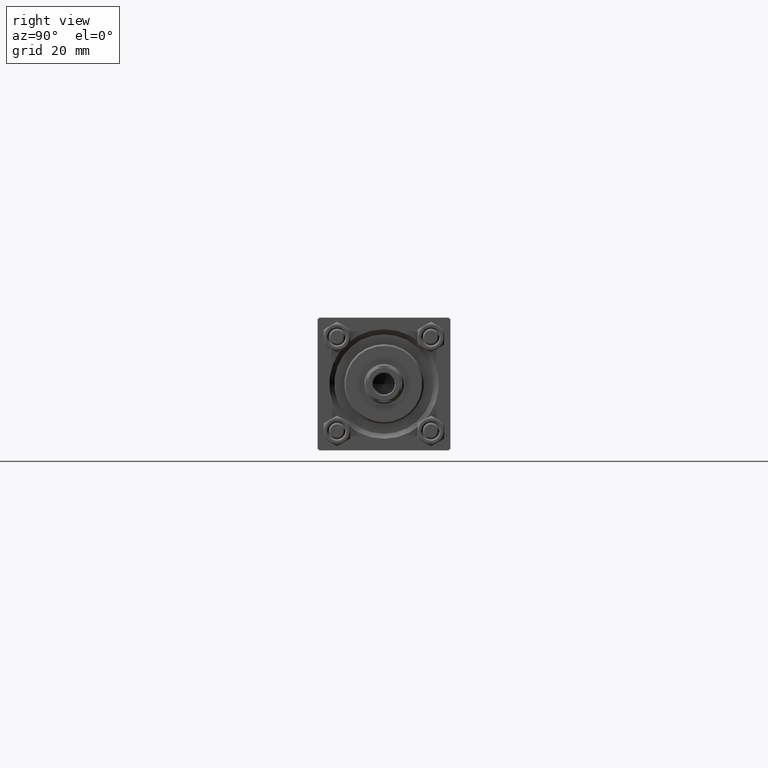
[diagram: clean part render]
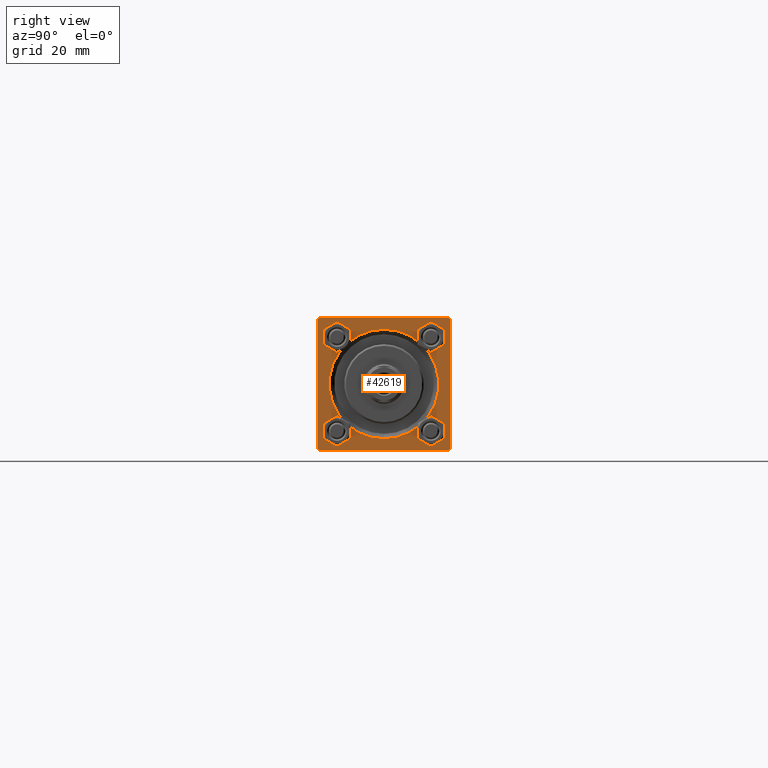
[diagram: same view with one face highlighted and labeled with its STEP entity id]
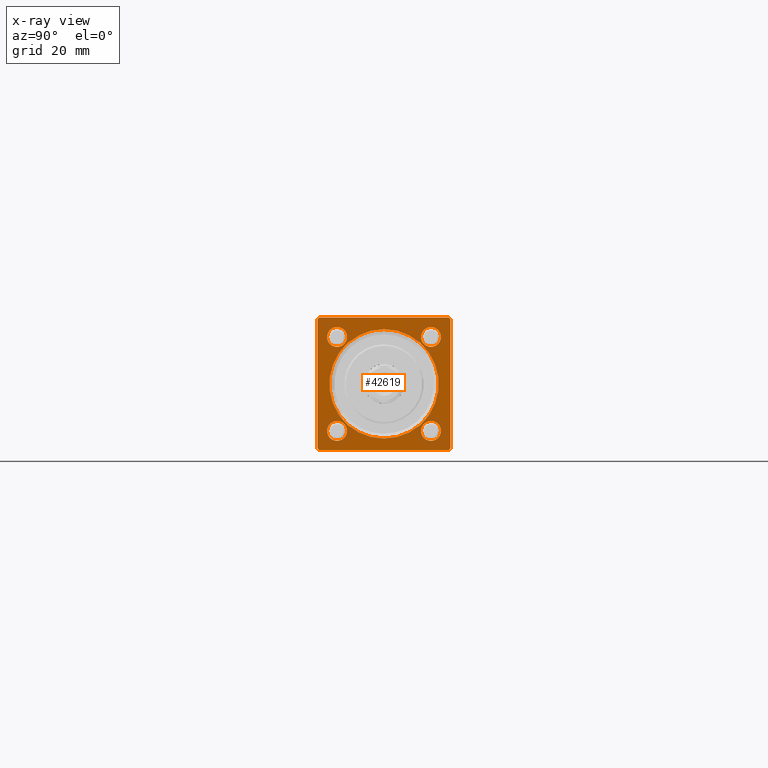
[diagram: x-ray of the same camera — body ghosted, the highlighted face saturated]
A machine part, right view. The second image highlights one B-rep face of the part: STEP entity #42619.
The next image is the same camera in x-ray: the body ghosted, the highlighted face saturated — about 0% of this face is hidden behind the body in this view.
In plain terms, the highlighted planar face has unit normal (-1, 0, 0).
Its self-contained STEP definition (entity closure, byte-faithful):
#65 = LINE ( 'NONE', #10880, #676 ) ;
#303 = EDGE_CURVE ( 'NONE', #40761, #41611, #10837, .T. ) ;
#379 = VECTOR ( 'NONE', #19464, 1000.000000000000000 ) ;
#676 = VECTOR ( 'NONE', #41577, 1000.000000000000000 ) ;
#960 = LINE ( 'NONE', #42475, #36197 ) ;
#1293 = ORIENTED_EDGE ( 'NONE', *, *, #8241, .T. ) ;
#1320 = EDGE_CURVE ( 'NONE', #47875, #2903, #47844, .T. ) ;
#1404 = VERTEX_POINT ( 'NONE', #48044 ) ;
#1768 = ORIENTED_EDGE ( 'NONE', *, *, #30400, .T. ) ;
#1890 = VECTOR ( 'NONE', #25726, 1000.000000000000000 ) ;
#2099 = ORIENTED_EDGE ( 'NONE', *, *, #47697, .T. ) ;
#2309 = CARTESIAN_POINT ( 'NONE',  ( 179.0000000000000000, -20.00000000000000355, 19.99999999999999645 ) ) ;
#2518 = CARTESIAN_POINT ( 'NONE',  ( 179.0000000000000000, 14.15000000000000036, 14.15000000000000036 ) ) ;
#2765 = DIRECTION ( 'NONE',  ( -1.000000000000000000, -0.000000000000000000, -0.000000000000000000 ) ) ;
#2903 = VERTEX_POINT ( 'NONE', #9374 ) ;
#3038 = ORIENTED_EDGE ( 'NONE', *, *, #48677, .T. ) ;
#3092 = CARTESIAN_POINT ( 'NONE',  ( 179.0000000000000000, 19.99999999999999645, 20.00000000000000000 ) ) ;
#4147 = VERTEX_POINT ( 'NONE', #26668 ) ;
#4391 = EDGE_CURVE ( 'NONE', #49770, #11071, #26112, .T. ) ;
#4613 = CARTESIAN_POINT ( 'NONE',  ( 179.0000000000000000, 14.15000000000000036, -11.15000000000002522 ) ) ;
#4697 = EDGE_LOOP ( 'NONE', ( #26913, #18633 ) ) ;
#5850 = FACE_OUTER_BOUND ( 'NONE', #32778, .T. ) ;
#5941 = LINE ( 'NONE', #29089, #20116 ) ;
#6669 = DIRECTION ( 'NONE',  ( -1.000000000000000000, -0.000000000000000000, -0.000000000000000000 ) ) ;
#7572 = ORIENTED_EDGE ( 'NONE', *, *, #32546, .T. ) ;
#7602 = EDGE_LOOP ( 'NONE', ( #42468, #26529 ) ) ;
#7788 = EDGE_CURVE ( 'NONE', #49770, #17042, #42924, .T. ) ;
#8183 = DIRECTION ( 'NONE',  ( -0.000000000000000000, 0.7071067811865474617, 0.7071067811865474617 ) ) ;
#8241 = EDGE_CURVE ( 'NONE', #23576, #26657, #36764, .T. ) ;
#8779 = CARTESIAN_POINT ( 'NONE',  ( 179.0000000000000000, 14.15000000000000036, -14.15000000000000036 ) ) ;
#8870 = DIRECTION ( 'NONE',  ( -1.000000000000000000, -0.000000000000000000, -0.000000000000000000 ) ) ;
#8890 = DIRECTION ( 'NONE',  ( -1.000000000000000000, 0.000000000000000000, -0.000000000000000000 ) ) ;
#9374 = CARTESIAN_POINT ( 'NONE',  ( 179.0000000000000000, 14.15000000000000036, -17.14999999999997726 ) ) ;
#9743 = VERTEX_POINT ( 'NONE', #11780 ) ;
#9871 = FACE_BOUND ( 'NONE', #30403, .T. ) ;
#10373 = LINE ( 'NONE', #3092, #1890 ) ;
#10379 = CARTESIAN_POINT ( 'NONE',  ( 179.0000000000000000, -20.00000000000000355, 19.50000000000002487 ) ) ;
#10803 = EDGE_CURVE ( 'NONE', #2903, #47875, #27253, .T. ) ;
#10837 = CIRCLE ( 'NONE', #43020, 2.999999999999973355 ) ;
#10880 = CARTESIAN_POINT ( 'NONE',  ( 179.0000000000000000, 19.99999999999999645, 20.00000000000000000 ) ) ;
#11071 = VERTEX_POINT ( 'NONE', #35322 ) ;
#11375 = DIRECTION ( 'NONE',  ( -1.000000000000000000, -0.000000000000000000, -0.000000000000000000 ) ) ;
#11780 = CARTESIAN_POINT ( 'NONE',  ( 179.0000000000000000, -14.15000000000000036, -17.14999999999997726 ) ) ;
#12035 = ORIENTED_EDGE ( 'NONE', *, *, #27922, .T. ) ;
#12257 = ORIENTED_EDGE ( 'NONE', *, *, #33449, .T. ) ;
#12384 = DIRECTION ( 'NONE',  ( 0.000000000000000000, 0.000000000000000000, 1.000000000000000000 ) ) ;
#12581 = ORIENTED_EDGE ( 'NONE', *, *, #23697, .F. ) ;
#12619 = ORIENTED_EDGE ( 'NONE', *, *, #1320, .T. ) ;
#12751 = DIRECTION ( 'NONE',  ( 0.000000000000000000, 0.7071067811865474617, -0.7071067811865474617 ) ) ;
#13176 = EDGE_CURVE ( 'NONE', #1404, #34651, #25701, .T. ) ;
#13246 = CIRCLE ( 'NONE', #41392, 16.49999999999998579 ) ;
#13392 = FACE_BOUND ( 'NONE', #14469, .T. ) ;
#13445 = DIRECTION ( 'NONE',  ( -1.000000000000000000, -0.000000000000000000, -0.000000000000000000 ) ) ;
#14057 = CARTESIAN_POINT ( 'NONE',  ( 179.0000000000000000, 0.000000000000000000, -16.49999999999998579 ) ) ;
#14469 = EDGE_LOOP ( 'NONE', ( #15778, #12619 ) ) ;
#14742 = CARTESIAN_POINT ( 'NONE',  ( 179.0000000000000000, 19.99999999999999645, -19.50000000000000000 ) ) ;
#14923 = CARTESIAN_POINT ( 'NONE',  ( 179.0000000000000000, -14.15000000000000036, 17.15000000000000568 ) ) ;
#15778 = ORIENTED_EDGE ( 'NONE', *, *, #10803, .T. ) ;
#17042 = VERTEX_POINT ( 'NONE', #14742 ) ;
#17192 = CARTESIAN_POINT ( 'NONE',  ( 179.0000000000000000, -14.15000000000000036, 14.15000000000000036 ) ) ;
#17605 = AXIS2_PLACEMENT_3D ( 'NONE', #41734, #33927, #38694 ) ;
#17892 = ORIENTED_EDGE ( 'NONE', *, *, #4391, .F. ) ;
#18633 = ORIENTED_EDGE ( 'NONE', *, *, #30919, .T. ) ;
#18936 = DIRECTION ( 'NONE',  ( 0.000000000000000000, 0.000000000000000000, 1.000000000000000000 ) ) ;
#19054 = DIRECTION ( 'NONE',  ( 0.000000000000000000, -1.000000000000000000, 0.000000000000000000 ) ) ;
#19464 = DIRECTION ( 'NONE',  ( -0.000000000000000000, -0.7071067811865279218, -0.7071067811865671127 ) ) ;
#19692 = CARTESIAN_POINT ( 'NONE',  ( 179.0000000000000000, 19.50000000000002487, 20.00000000000000000 ) ) ;
#20116 = VECTOR ( 'NONE', #28117, 1000.000000000000114 ) ;
#20271 = VERTEX_POINT ( 'NONE', #42366 ) ;
#20694 = DIRECTION ( 'NONE',  ( 0.000000000000000000, 8.673617379884036705E-17, -1.000000000000000000 ) ) ;
#20855 = AXIS2_PLACEMENT_3D ( 'NONE', #46893, #8870, #12384 ) ;
#20980 = DIRECTION ( 'NONE',  ( -1.000000000000000000, -0.000000000000000000, -0.000000000000000000 ) ) ;
#21318 = VERTEX_POINT ( 'NONE', #19692 ) ;
#21438 = FACE_BOUND ( 'NONE', #39091, .T. ) ;
#21525 = EDGE_CURVE ( 'NONE', #41611, #40761, #47579, .T. ) ;
#21750 = DIRECTION ( 'NONE',  ( 0.000000000000000000, 0.000000000000000000, 1.000000000000000000 ) ) ;
#21765 = CARTESIAN_POINT ( 'NONE',  ( 179.0000000000000000, 14.15000000000000036, -14.15000000000000036 ) ) ;
#23483 = CARTESIAN_POINT ( 'NONE',  ( 179.0000000000000000, -14.15000000000000036, 14.15000000000000036 ) ) ;
#23552 = ORIENTED_EDGE ( 'NONE', *, *, #44164, .T. ) ;
#23576 = VERTEX_POINT ( 'NONE', #10379 ) ;
#23697 = EDGE_CURVE ( 'NONE', #20271, #17042, #65, .T. ) ;
#23984 = CARTESIAN_POINT ( 'NONE',  ( 179.0000000000000000, -14.15000000000000036, -11.15000000000002522 ) ) ;
#24127 = DIRECTION ( 'NONE',  ( -1.000000000000000000, -0.000000000000000000, -0.000000000000000000 ) ) ;
#25287 = DIRECTION ( 'NONE',  ( 0.000000000000000000, 0.000000000000000000, 1.000000000000000000 ) ) ;
#25701 = CIRCLE ( 'NONE', #46637, 3.000000000000004441 ) ;
#25726 = DIRECTION ( 'NONE',  ( 0.000000000000000000, -1.000000000000000000, -8.673617379884035472E-17 ) ) ;
#26024 = AXIS2_PLACEMENT_3D ( 'NONE', #36308, #8890, #47418 ) ;
#26112 = LINE ( 'NONE', #49042, #34264 ) ;
#26120 = AXIS2_PLACEMENT_3D ( 'NONE', #8779, #24127, #27153 ) ;
#26529 = ORIENTED_EDGE ( 'NONE', *, *, #21525, .T. ) ;
#26657 = VERTEX_POINT ( 'NONE', #29815 ) ;
#26668 = CARTESIAN_POINT ( 'NONE',  ( 179.0000000000000000, 2.020667218593131128E-15, 16.49999999999998579 ) ) ;
#26875 = AXIS2_PLACEMENT_3D ( 'NONE', #32886, #48284, #44239 ) ;
#26913 = ORIENTED_EDGE ( 'NONE', *, *, #49371, .T. ) ;
#27153 = DIRECTION ( 'NONE',  ( 0.000000000000000000, 0.000000000000000000, 1.000000000000000000 ) ) ;
#27253 = CIRCLE ( 'NONE', #35294, 2.999999999999976463 ) ;
#27922 = EDGE_CURVE ( 'NONE', #34651, #1404, #36125, .T. ) ;
#28117 = DIRECTION ( 'NONE',  ( 0.000000000000000000, -0.7071067811865474617, 0.7071067811865474617 ) ) ;
#29089 = CARTESIAN_POINT ( 'NONE',  ( 179.0000000000000000, 19.50000000000002487, 20.00000000000000000 ) ) ;
#29133 = CARTESIAN_POINT ( 'NONE',  ( 179.0000000000000000, 19.49999999999999645, -20.00000000000000000 ) ) ;
#29815 = CARTESIAN_POINT ( 'NONE',  ( 179.0000000000000000, -20.00000000000000000, -19.50000000000002487 ) ) ;
#30400 = EDGE_CURVE ( 'NONE', #42489, #9743, #46599, .T. ) ;
#30403 = EDGE_LOOP ( 'NONE', ( #3038, #1768 ) ) ;
#30546 = LINE ( 'NONE', #38085, #379 ) ;
#30919 = EDGE_CURVE ( 'NONE', #4147, #31623, #39311, .T. ) ;
#31623 = VERTEX_POINT ( 'NONE', #14057 ) ;
#31955 = VECTOR ( 'NONE', #8183, 1000.000000000000114 ) ;
#32027 = FACE_BOUND ( 'NONE', #4697, .T. ) ;
#32546 = EDGE_CURVE ( 'NONE', #20271, #21318, #5941, .T. ) ;
#32778 = EDGE_LOOP ( 'NONE', ( #1293, #12257, #17892, #46791, #12581, #7572, #23552, #2099 ) ) ;
#32886 = CARTESIAN_POINT ( 'NONE',  ( 179.0000000000000000, -14.15000000000000036, -14.15000000000000036 ) ) ;
#33449 = EDGE_CURVE ( 'NONE', #26657, #11071, #960, .T. ) ;
#33910 = CARTESIAN_POINT ( 'NONE',  ( 179.0000000000000000, 14.15000000000000036, 11.15000000000002700 ) ) ;
#33927 = DIRECTION ( 'NONE',  ( -1.000000000000000000, -0.000000000000000000, -0.000000000000000000 ) ) ;
#34264 = VECTOR ( 'NONE', #19054, 1000.000000000000000 ) ;
#34651 = VERTEX_POINT ( 'NONE', #14923 ) ;
#35294 = AXIS2_PLACEMENT_3D ( 'NONE', #21765, #6669, #25287 ) ;
#35322 = CARTESIAN_POINT ( 'NONE',  ( 179.0000000000000000, -19.50000000000002487, -20.00000000000000000 ) ) ;
#35357 = CARTESIAN_POINT ( 'NONE',  ( 179.0000000000000000, 19.99999999999999645, -19.50000000000000000 ) ) ;
#35518 = AXIS2_PLACEMENT_3D ( 'NONE', #44168, #13445, #21750 ) ;
#35557 = DIRECTION ( 'NONE',  ( 0.000000000000000000, 0.000000000000000000, 1.000000000000000000 ) ) ;
#35591 = VERTEX_POINT ( 'NONE', #42280 ) ;
#36125 = CIRCLE ( 'NONE', #40142, 3.000000000000004441 ) ;
#36197 = VECTOR ( 'NONE', #12751, 1000.000000000000114 ) ;
#36308 = CARTESIAN_POINT ( 'NONE',  ( 179.0000000000000000, 0.000000000000000000, 0.000000000000000000 ) ) ;
#36754 = VECTOR ( 'NONE', #20694, 1000.000000000000000 ) ;
#36764 = LINE ( 'NONE', #2309, #36754 ) ;
#36801 = DIRECTION ( 'NONE',  ( 0.000000000000000000, 0.000000000000000000, 1.000000000000000000 ) ) ;
#37389 = CARTESIAN_POINT ( 'NONE',  ( 179.0000000000000000, 14.15000000000000036, 17.14999999999997726 ) ) ;
#37801 = CARTESIAN_POINT ( 'NONE',  ( 179.0000000000000000, 0.000000000000000000, 0.000000000000000000 ) ) ;
#38085 = CARTESIAN_POINT ( 'NONE',  ( 179.0000000000000000, -20.00000000000000355, 19.50000000000002487 ) ) ;
#38694 = DIRECTION ( 'NONE',  ( 0.000000000000000000, 0.000000000000000000, 1.000000000000000000 ) ) ;
#38698 = ORIENTED_EDGE ( 'NONE', *, *, #13176, .T. ) ;
#39091 = EDGE_LOOP ( 'NONE', ( #38698, #12035 ) ) ;
#39311 = CIRCLE ( 'NONE', #17605, 16.49999999999998579 ) ;
#40142 = AXIS2_PLACEMENT_3D ( 'NONE', #23483, #43125, #35557 ) ;
#40322 = FACE_BOUND ( 'NONE', #7602, .T. ) ;
#40761 = VERTEX_POINT ( 'NONE', #33910 ) ;
#41392 = AXIS2_PLACEMENT_3D ( 'NONE', #37801, #11375, #18936 ) ;
#41577 = DIRECTION ( 'NONE',  ( 0.000000000000000000, 0.000000000000000000, -1.000000000000000000 ) ) ;
#41611 = VERTEX_POINT ( 'NONE', #37389 ) ;
#41734 = CARTESIAN_POINT ( 'NONE',  ( 179.0000000000000000, 0.000000000000000000, 0.000000000000000000 ) ) ;
#42280 = CARTESIAN_POINT ( 'NONE',  ( 179.0000000000000000, -19.50000000000006040, 19.99999999999999645 ) ) ;
#42366 = CARTESIAN_POINT ( 'NONE',  ( 179.0000000000000000, 19.99999999999999645, 19.50000000000002842 ) ) ;
#42468 = ORIENTED_EDGE ( 'NONE', *, *, #303, .T. ) ;
#42475 = CARTESIAN_POINT ( 'NONE',  ( 179.0000000000000000, -19.50000000000002487, -20.00000000000000000 ) ) ;
#42489 = VERTEX_POINT ( 'NONE', #23984 ) ;
#42619 = ADVANCED_FACE ( 'NONE', ( #9871, #13392, #40322, #21438, #32027, #5850 ), #43385, .F. ) ;
#42924 = LINE ( 'NONE', #35357, #31955 ) ;
#43020 = AXIS2_PLACEMENT_3D ( 'NONE', #2518, #2765, #45288 ) ;
#43125 = DIRECTION ( 'NONE',  ( -1.000000000000000000, -0.000000000000000000, -0.000000000000000000 ) ) ;
#43385 = PLANE ( 'NONE',  #26024 ) ;
#44164 = EDGE_CURVE ( 'NONE', #21318, #35591, #10373, .T. ) ;
#44168 = CARTESIAN_POINT ( 'NONE',  ( 179.0000000000000000, 14.15000000000000036, 14.15000000000000036 ) ) ;
#44239 = DIRECTION ( 'NONE',  ( 0.000000000000000000, 0.000000000000000000, 1.000000000000000000 ) ) ;
#45288 = DIRECTION ( 'NONE',  ( 0.000000000000000000, 0.000000000000000000, 1.000000000000000000 ) ) ;
#46599 = CIRCLE ( 'NONE', #20855, 2.999999999999976463 ) ;
#46637 = AXIS2_PLACEMENT_3D ( 'NONE', #17192, #20980, #36801 ) ;
#46791 = ORIENTED_EDGE ( 'NONE', *, *, #7788, .T. ) ;
#46893 = CARTESIAN_POINT ( 'NONE',  ( 179.0000000000000000, -14.15000000000000036, -14.15000000000000036 ) ) ;
#47418 = DIRECTION ( 'NONE',  ( -0.000000000000000000, 0.000000000000000000, 1.000000000000000000 ) ) ;
#47579 = CIRCLE ( 'NONE', #35518, 2.999999999999973355 ) ;
#47697 = EDGE_CURVE ( 'NONE', #35591, #23576, #30546, .T. ) ;
#47844 = CIRCLE ( 'NONE', #26120, 2.999999999999976463 ) ;
#47875 = VERTEX_POINT ( 'NONE', #4613 ) ;
#48044 = CARTESIAN_POINT ( 'NONE',  ( 179.0000000000000000, -14.15000000000000036, 11.14999999999999858 ) ) ;
#48284 = DIRECTION ( 'NONE',  ( -1.000000000000000000, -0.000000000000000000, -0.000000000000000000 ) ) ;
#48612 = CIRCLE ( 'NONE', #26875, 2.999999999999976463 ) ;
#48677 = EDGE_CURVE ( 'NONE', #9743, #42489, #48612, .T. ) ;
#49042 = CARTESIAN_POINT ( 'NONE',  ( 179.0000000000000000, 19.99999999999999645, -20.00000000000000000 ) ) ;
#49371 = EDGE_CURVE ( 'NONE', #31623, #4147, #13246, .T. ) ;
#49770 = VERTEX_POINT ( 'NONE', #29133 ) ;